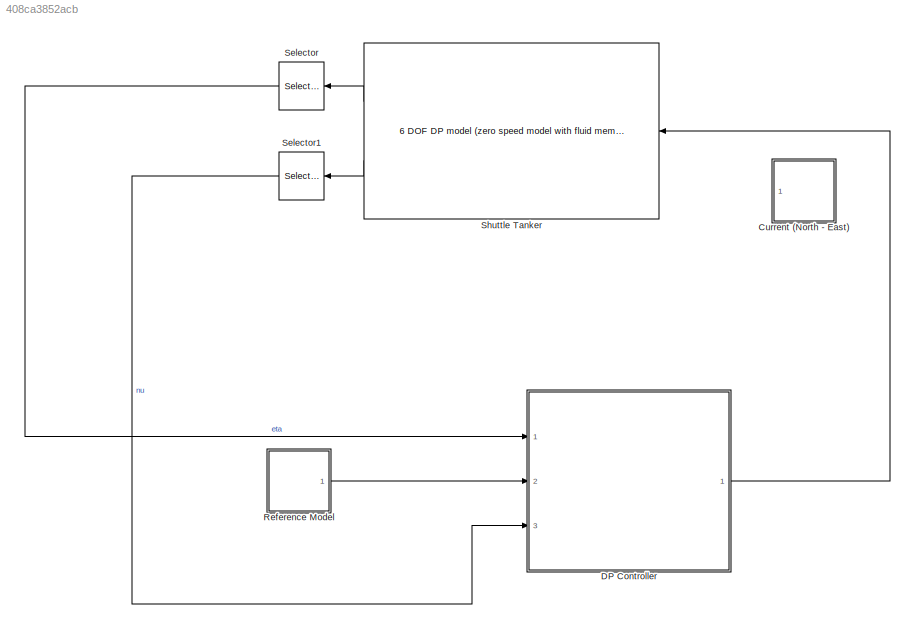
MODEL slx_408ca3852acb
KIND model
CONFIG AbsTol = auto
CONFIG EnableMultiTasking = off
CONFIG FixedStep = auto
CONFIG MaxStep = auto
CONFIG MinStep = auto
CONFIG RelTol = 1e-3
CONFIG SampleTimeConstraint = Unconstrained
CONFIG Solver = VariableStepAuto
CONFIG SolverName = VariableStepAuto
CONFIG StartTime = 0.0
CONFIG StopTime = 10
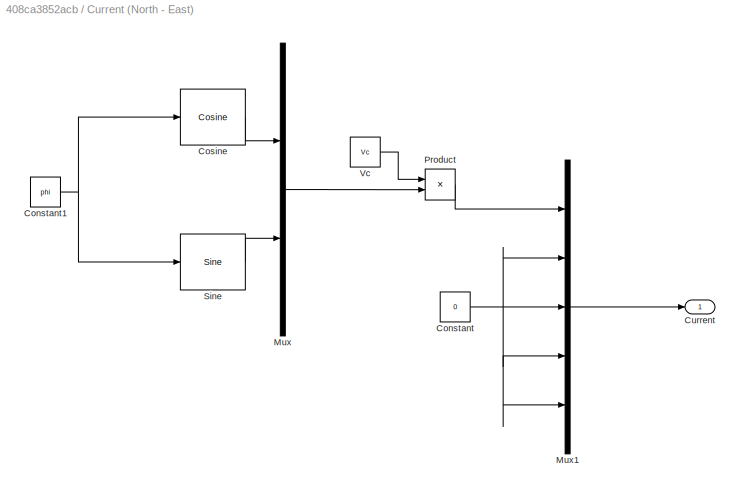
BLOCK [SubSystem] Current (North - East)
  Ports = [0, 1]
  RequestExecContextInheritance = off
BLOCK [Constant] Current (North - East)/Constant
  Value = 0
BLOCK [Constant] Current (North - East)/Constant1
  Value = phi
BLOCK [Reference] Current (North - East)/Cosine  REF=simulink/Lookup
Tables/Cosine
  Formula = cos(2*pi*u)
  InternalRulePriority = Speed
  NumDataPoints = (2^5)+1
  OutputWordLength = 16
  Ports = [1, 1]
  SourceBlock = simulink/Lookup\nTables/Cosine
  SourceType = Sine and Cosine
BLOCK [Outport] Current (North - East)/Current
  IconDisplay = Port number
BLOCK [Mux] Current (North - East)/Mux
  DisplayOption = bar
  Inputs = 2
  Ports = [2, 1]
BLOCK [Mux] Current (North - East)/Mux1
  DisplayOption = bar
  Inputs = 5
  Ports = [5, 1]
BLOCK [Product] Current (North - East)/Product
  InputSameDT = off
  OutDataTypeStr = Inherit: Inherit via internal rule
  Ports = [2, 1]
  RndMeth = Floor
  SaturateOnIntegerOverflow = off
BLOCK [Reference] Current (North - East)/Sine  REF=simulink/Lookup
Tables/Sine
  Formula = sin(2*pi*u)
  InternalRulePriority = Speed
  NumDataPoints = (2^5)+1
  OutputWordLength = 16
  Ports = [1, 1]
  SourceBlock = simulink/Lookup\nTables/Sine
  SourceType = Sine and Cosine
BLOCK [Constant] Current (North - East)/Vc
  Value = Vc
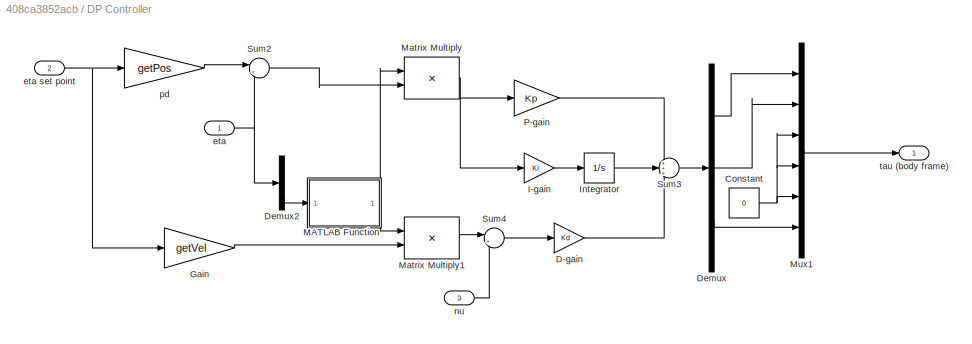
BLOCK [SubSystem] DP Controller
  Ports = [3, 1]
  RequestExecContextInheritance = off
BLOCK [Constant] DP Controller/Constant
  Value = 0
BLOCK [Gain] DP Controller/D-gain
  Gain = Kd
  Multiplication = Matrix(K*u)
  OutDataTypeStr = Inherit: Inherit via internal rule
  ParamDataTypeStr = Inherit: Inherit via internal rule
  SaturateOnIntegerOverflow = off
BLOCK [Demux] DP Controller/Demux
  DisplayOption = bar
  Outputs = 3
  Ports = [1, 3]
BLOCK [Demux] DP Controller/Demux2
  DisplayOption = bar
  Outputs = 3
  Ports = [1, 3]
BLOCK [Gain] DP Controller/Gain
  Gain = getVel
  Multiplication = Matrix(u*K)
  OutDataTypeStr = Inherit: Inherit via internal rule
  ParamDataTypeStr = Inherit: Inherit via internal rule
  SaturateOnIntegerOverflow = off
BLOCK [Gain] DP Controller/I-gain
  Gain = Ki
  Multiplication = Matrix(K*u)
  OutDataTypeStr = Inherit: Inherit via internal rule
  ParamDataTypeStr = Inherit: Inherit via internal rule
  SaturateOnIntegerOverflow = off
BLOCK [Integrator] DP Controller/Integrator
  Ports = [1, 1]
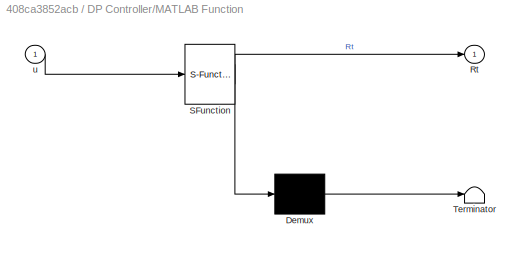
BLOCK [SubSystem] DP Controller/MATLAB Function
  ErrorFcn = Stateflow.Translate.translate
  PermitHierarchicalResolution = ExplicitOnly
  Ports = [1, 1]
  RequestExecContextInheritance = off
  SFBlockType = MATLAB Function
  TreatAsAtomicUnit = on
BLOCK [Demux] DP Controller/MATLAB Function/ Demux 
  Outputs = 1
  Ports = [1, 1]
BLOCK [S-Function] DP Controller/MATLAB Function/ SFunction 
  EnableBusSupport = on
  FunctionName = sf_sfun
  PortCounts = [1 2]
  Ports = [1, 2]
  Tag = Stateflow S-Function part1_Simulation3 1
BLOCK [Terminator] DP Controller/MATLAB Function/ Terminator 
BLOCK [Outport] DP Controller/MATLAB Function/Rt
  IconDisplay = Port number
BLOCK [Inport] DP Controller/MATLAB Function/u
  IconDisplay = Port number
BLOCK [Product] DP Controller/Matrix Multiply
  InputSameDT = off
  Multiplication = Matrix(*)
  OutDataTypeStr = Inherit: Inherit via internal rule
  Ports = [2, 1]
  RndMeth = Floor
  SaturateOnIntegerOverflow = off
BLOCK [Product] DP Controller/Matrix Multiply1
  InputSameDT = off
  Multiplication = Matrix(*)
  OutDataTypeStr = Inherit: Inherit via internal rule
  Ports = [2, 1]
  RndMeth = Floor
  SaturateOnIntegerOverflow = off
BLOCK [Mux] DP Controller/Mux1
  DisplayOption = bar
  Inputs = 6
  Ports = [6, 1]
BLOCK [Gain] DP Controller/P-gain
  Gain = Kp
  Multiplication = Matrix(K*u)
  OutDataTypeStr = Inherit: Inherit via internal rule
  ParamDataTypeStr = Inherit: Inherit via internal rule
  SaturateOnIntegerOverflow = off
BLOCK [Sum] DP Controller/Sum2
  IconShape = round
  InputSameDT = off
  Inputs = |+-
  OutDataTypeStr = Inherit: Inherit via internal rule
  Ports = [2, 1]
  SaturateOnIntegerOverflow = off
BLOCK [Sum] DP Controller/Sum3
  IconShape = round
  InputSameDT = off
  Inputs = +++
  OutDataTypeStr = Inherit: Inherit via internal rule
  Ports = [3, 1]
  SaturateOnIntegerOverflow = off
BLOCK [Sum] DP Controller/Sum4
  IconShape = round
  InputSameDT = off
  Inputs = |+-
  OutDataTypeStr = Inherit: Inherit via internal rule
  Ports = [2, 1]
  SaturateOnIntegerOverflow = off
BLOCK [Inport] DP Controller/eta
  IconDisplay = Port number
BLOCK [Inport] DP Controller/eta set point
  IconDisplay = Port number
  Port = 2
BLOCK [Inport] DP Controller/nu
  IconDisplay = Port number
  Port = 3
BLOCK [Gain] DP Controller/pd
  Gain = getPos
  Multiplication = Matrix(u*K)
  OutDataTypeStr = Inherit: Inherit via internal rule
  ParamDataTypeStr = Inherit: Inherit via internal rule
  SaturateOnIntegerOverflow = off
BLOCK [Outport] DP Controller/tau (body frame)
  IconDisplay = Port number
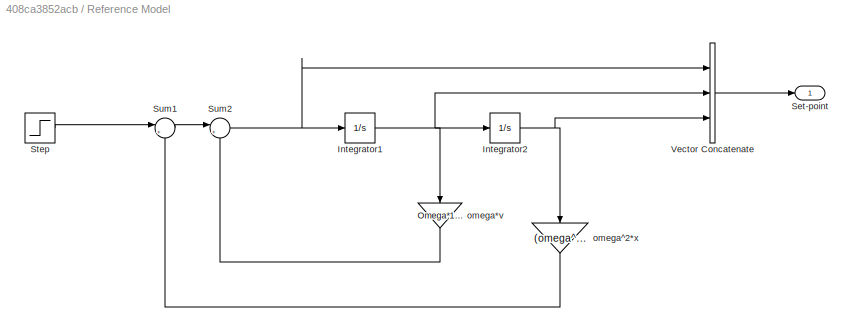
BLOCK [SubSystem] Reference Model
  Ports = [0, 1]
  RequestExecContextInheritance = off
BLOCK [Integrator] Reference Model/Integrator1
  Ports = [1, 1]
BLOCK [Integrator] Reference Model/Integrator2
  Ports = [1, 1]
BLOCK [Outport] Reference Model/Set-point
  IconDisplay = Port number
BLOCK [Step] Reference Model/Step
  After = ref
  SampleTime = 0
  Time = 50
BLOCK [Sum] Reference Model/Sum1
  IconShape = round
  InputSameDT = off
  Inputs = |+-
  OutDataTypeStr = Inherit: Inherit via internal rule
  Ports = [2, 1]
  SaturateOnIntegerOverflow = off
BLOCK [Sum] Reference Model/Sum2
  IconShape = round
  InputSameDT = off
  Inputs = |+-
  OutDataTypeStr = Inherit: Inherit via internal rule
  Ports = [2, 1]
  SaturateOnIntegerOverflow = off
BLOCK [Concatenate] Reference Model/Vector Concatenate
  ConcatenateDimension = 2
  Mode = Multidimensional array
  NumInputs = 3
  Ports = [3, 1]
BLOCK [Gain] Reference Model/omega*v
  Gain = Omega*165.7
  Multiplication = Matrix(K*u)
  OutDataTypeStr = Inherit: Inherit via internal rule
  ParamDataTypeStr = Inherit: Inherit via internal rule
  SaturateOnIntegerOverflow = off
BLOCK [Gain] Reference Model/omega^2*x
  Gain = (omega^2)*165.7
  Multiplication = Matrix(K*u)
  OutDataTypeStr = Inherit: Inherit via internal rule
  ParamDataTypeStr = Inherit: Inherit via internal rule
  SaturateOnIntegerOverflow = off
BLOCK [Selector] Selector
  Indices = [1 2 6]
  InputPortWidth = 6
  Ports = [1, 1]
BLOCK [Selector] Selector1
  Indices = [1 2 6]
  InputPortWidth = 6
  Ports = [1, 1]
BLOCK [Reference] Shuttle Tanker  REF=marine_hydro/Hydro Library/6 DOF DP model
 (zero speed model with fluid memory)
  ABC = vesselABC
  Axc = 0.9*vessel.main.T*vessel.main.B
  Ayc = 0.9*vessel.main.T*vessel.main.Lpp
  Bv = vessel.Bv
  CX = 1
  CY_2D = Hoerner(vessel.main.B,vessel.main.T)
  Ports = [3, 2]
  SourceBlock = marine_hydro/Hydro Library/6 DOF DP model\n (zero speed model with fluid memory)
  SourceType = 6 DOF zero speed model
  rho = 1025
NET Current (North - East)/Constant1:1 -> Current (North - East)/Cosine:1, Current (North - East)/Sine:1
NET Current (North - East)/Constant:1 -> Current (North - East)/Mux1:2, Current (North - East)/Mux1:3, Current (North - East)/Mux1:4, Current (North - East)/Mux1:5
LINE Current (North - East)/Cosine:1 -> Current (North - East)/Mux:1
LINE Current (North - East)/Mux1:1 -> Current (North - East)/Current:1
LINE Current (North - East)/Mux:1 -> Current (North - East)/Product:2
LINE Current (North - East)/Product:1 -> Current (North - East)/Mux1:1
LINE Current (North - East)/Sine:1 -> Current (North - East)/Mux:2
LINE Current (North - East)/Vc:1 -> Current (North - East)/Product:1
NET DP Controller/Constant:1 -> DP Controller/Mux1:3, DP Controller/Mux1:4, DP Controller/Mux1:5
LINE DP Controller/D-gain:1 -> DP Controller/Sum3:3
LINE DP Controller/Demux2:3 -> DP Controller/MATLAB Function:1
LINE DP Controller/Demux:1 -> DP Controller/Mux1:1
LINE DP Controller/Demux:2 -> DP Controller/Mux1:2
LINE DP Controller/Demux:3 -> DP Controller/Mux1:6
LINE DP Controller/Gain:1 -> DP Controller/Matrix Multiply1:2
LINE DP Controller/I-gain:1 -> DP Controller/Integrator:1
LINE DP Controller/Integrator:1 -> DP Controller/Sum3:2
NET DP Controller/MATLAB Function:1 -> DP Controller/Matrix Multiply1:1, DP Controller/Matrix Multiply:1
LINE DP Controller/Matrix Multiply1:1 -> DP Controller/Sum4:1
NET DP Controller/Matrix Multiply:1 -> DP Controller/I-gain:1, DP Controller/P-gain:1
LINE DP Controller/Mux1:1 -> DP Controller/tau (body frame):1
LINE DP Controller/P-gain:1 -> DP Controller/Sum3:1
LINE DP Controller/Sum2:1 -> DP Controller/Matrix Multiply:2
LINE DP Controller/Sum3:1 -> DP Controller/Demux:1
LINE DP Controller/Sum4:1 -> DP Controller/D-gain:1
NET DP Controller/eta set point:1 -> DP Controller/Gain:1, DP Controller/pd:1
NET DP Controller/eta:1 -> DP Controller/Demux2:1, DP Controller/Sum2:2
LINE DP Controller/nu:1 -> DP Controller/Sum4:2
LINE DP Controller/pd:1 -> DP Controller/Sum2:1
LINE DP Controller:1 -> Shuttle Tanker:2
NET Reference Model/Integrator1:1 -> Reference Model/Integrator2:1, Reference Model/Vector Concatenate:2, Reference Model/omega*v:1
NET Reference Model/Integrator2:1 -> Reference Model/Vector Concatenate:3, Reference Model/omega^2*x:1
LINE Reference Model/Step:1 -> Reference Model/Sum1:1
LINE Reference Model/Sum1:1 -> Reference Model/Sum2:1
NET Reference Model/Sum2:1 -> Reference Model/Integrator1:1, Reference Model/Vector Concatenate:1
LINE Reference Model/Vector Concatenate:1 -> Reference Model/Set-point:1
LINE Reference Model/omega*v:1 -> Reference Model/Sum2:2
LINE Reference Model/omega^2*x:1 -> Reference Model/Sum1:2
LINE Reference Model:1 -> DP Controller:2
LINE Selector1:1 -> DP Controller:3
LINE Selector:1 -> DP Controller:1
LINE Shuttle Tanker:1 -> Selector:1
LINE Shuttle Tanker:2 -> Selector1:1
note: NET lines group one-source signal fan-out (src -> all destinations, sorted); 1:1 wires keep LINE
CHART DP Controller/MATLAB Function states=1 transitions=1
  STATE_LABEL 'eML_blk_kernel()'
  STATE_LABEL 'SCRIPT:\nfunction Rt = fcn(u)\n\nR=[cos(u) -sin(u) 0; sin(u) cos(u) 0; 0 0 1];\nRt=transpose(R);\n\nend'
